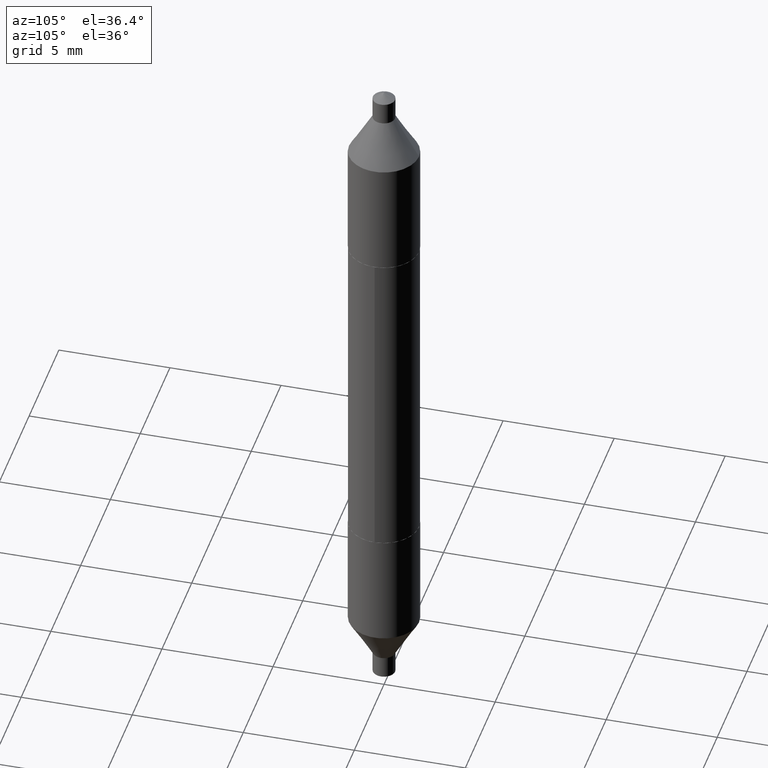
[diagram: clean part render]
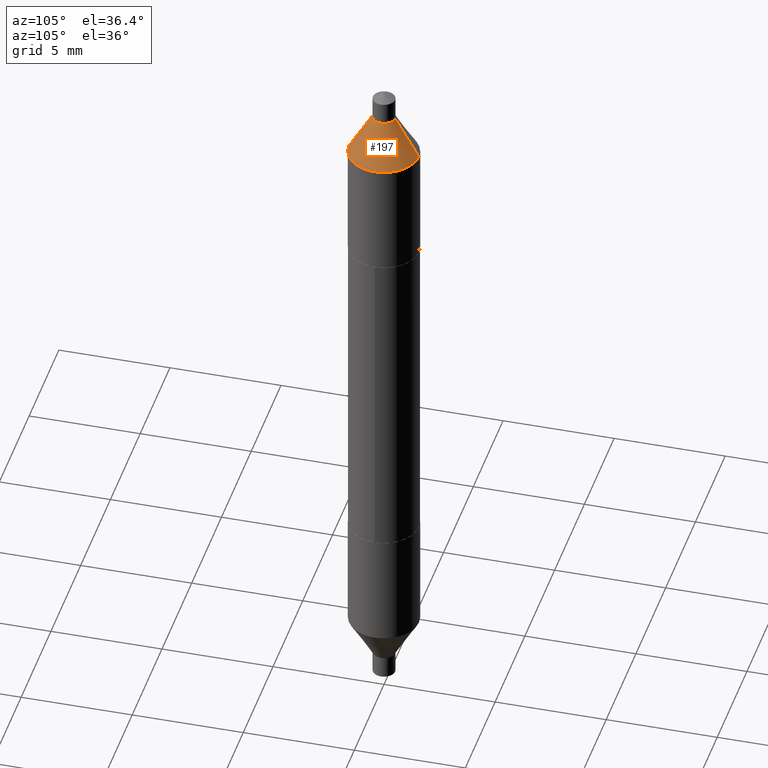
[diagram: same view with one face highlighted and labeled with its STEP entity id]
A machine part, auxiliary view. The second image highlights one B-rep face of the part: STEP entity #197.
In plain terms, the highlighted conical surface has half-angle 30 deg.
Its self-contained STEP definition (entity closure, byte-faithful):
#11 = FACE_OUTER_BOUND ( 'NONE', #480, .T. ) ;
#14 = CARTESIAN_POINT ( 'NONE',  ( -1.375643647504331674E-16, -0.01969999999999798648, 0.5687999999999999723 ) ) ;
#24 = VECTOR ( 'NONE', #96, 39.37007874015748854 ) ;
#28 = CARTESIAN_POINT ( 'NONE',  ( 4.253508758618278662E-16, 0.06200000000000175510, 0.4955342508398351553 ) ) ;
#39 = AXIS2_PLACEMENT_3D ( 'NONE', #514, #199, #88 ) ;
#63 = LINE ( 'NONE', #14, #238 ) ;
#64 = CARTESIAN_POINT ( 'NONE',  ( -1.381606163951305151E-29, 1.999382257196558882E-15, 0.5687999999999999723 ) ) ;
#88 = DIRECTION ( 'NONE',  ( -6.982962677686265922E-15, -1.000000000000000000, 3.304654831045479413E-15 ) ) ;
#95 = DIRECTION ( 'NONE',  ( -6.982962677686265133E-15, -1.000000000000000000, 3.466812174700844249E-15 ) ) ;
#96 = DIRECTION ( 'NONE',  ( 3.430248998885748032E-15, 0.4999999999999914513, -0.8660254037844434816 ) ) ;
#100 = VERTEX_POINT ( 'NONE', #547 ) ;
#161 = CARTESIAN_POINT ( 'NONE',  ( 1.351518105560852410E-16, 0.01970000000000198329, 0.5687999999999998613 ) ) ;
#169 = CARTESIAN_POINT ( 'NONE',  ( 1.351518105560847726E-16, 0.01970000000000198329, 0.5687999999999998613 ) ) ;
#176 = DIRECTION ( 'NONE',  ( -3.491481338843074191E-15, -0.4999999999999976685, -0.8660254037844400399 ) ) ;
#197 = ADVANCED_FACE ( 'NONE', ( #11 ), #515, .T. ) ;
#199 = DIRECTION ( 'NONE',  ( -2.411471369612255613E-29, 3.540167603029431901E-15, 1.000000000000000000 ) ) ;
#238 = VECTOR ( 'NONE', #176, 39.37007874015748143 ) ;
#253 = EDGE_CURVE ( 'NONE', #434, #100, #63, .T. ) ;
#257 = VERTEX_POINT ( 'NONE', #169 ) ;
#263 = ORIENTED_EDGE ( 'NONE', *, *, #460, .F. ) ;
#289 = VERTEX_POINT ( 'NONE', #28 ) ;
#314 = AXIS2_PLACEMENT_3D ( 'NONE', #64, #339, #544 ) ;
#326 = CIRCLE ( 'NONE', #39, 0.06200000000000000649 ) ;
#339 = DIRECTION ( 'NONE',  ( 2.411471369612255613E-29, -3.540167603029431901E-15, -1.000000000000000000 ) ) ;
#342 = EDGE_CURVE ( 'NONE', #100, #289, #326, .T. ) ;
#370 = EDGE_CURVE ( 'NONE', #434, #257, #439, .T. ) ;
#427 = CARTESIAN_POINT ( 'NONE',  ( -1.375643647504331674E-16, -0.01969999999999798648, 0.5687999999999999723 ) ) ;
#434 = VERTEX_POINT ( 'NONE', #427 ) ;
#439 = CIRCLE ( 'NONE', #663, 0.01969999999999998488 ) ;
#460 = EDGE_CURVE ( 'NONE', #257, #289, #632, .T. ) ;
#480 = EDGE_LOOP ( 'NONE', ( #263, #642, #497, #687 ) ) ;
#497 = ORIENTED_EDGE ( 'NONE', *, *, #253, .T. ) ;
#514 = CARTESIAN_POINT ( 'NONE',  ( -1.204927907478374845E-29, 1.740009225608063244E-15, 0.4955342508398353774 ) ) ;
#515 = CONICAL_SURFACE ( 'NONE', #314, 0.01969999999999998488, 0.5235987755982925984 ) ;
#544 = DIRECTION ( 'NONE',  ( -6.982962677686265133E-15, -1.000000000000000000, 3.466812174700844249E-15 ) ) ;
#547 = CARTESIAN_POINT ( 'NONE',  ( -4.329436860165605938E-16, -0.06199999999999826483, 0.4955342508398355439 ) ) ;
#629 = DIRECTION ( 'NONE',  ( -2.411471369612255613E-29, 3.540167603029431901E-15, 1.000000000000000000 ) ) ;
#632 = LINE ( 'NONE', #161, #24 ) ;
#642 = ORIENTED_EDGE ( 'NONE', *, *, #370, .F. ) ;
#663 = AXIS2_PLACEMENT_3D ( 'NONE', #678, #629, #95 ) ;
#678 = CARTESIAN_POINT ( 'NONE',  ( -1.381606163951305151E-29, 1.999382257196558882E-15, 0.5687999999999999723 ) ) ;
#687 = ORIENTED_EDGE ( 'NONE', *, *, #342, .T. ) ;